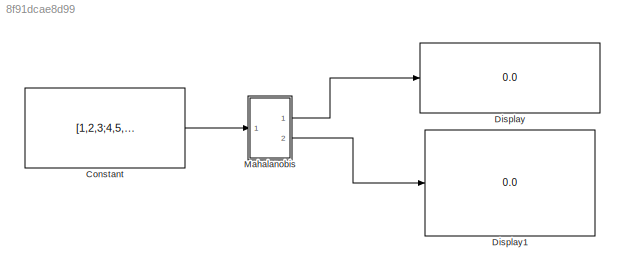
MODEL slx_8f91dcae8d99
KIND model
CONFIG AbsTol = auto
CONFIG EnableMultiTasking = off
CONFIG FixedStep = auto
CONFIG MaxStep = auto
CONFIG MinStep = auto
CONFIG RelTol = 1e-3
CONFIG SampleTimeConstraint = Unconstrained
CONFIG Solver = VariableStepAuto
CONFIG SolverName = VariableStepAuto
CONFIG StartTime = 0.0
CONFIG StopTime = 10.0
BLOCK [Constant] Constant
  Value = [1,2,3;4,5,6;7,8,9;1,2,3]
  VectorParams1D = off
BLOCK [Display] Display
  Decimation = 1
  Ports = [1]
BLOCK [Display] Display1
  Decimation = 1
  Ports = [1]
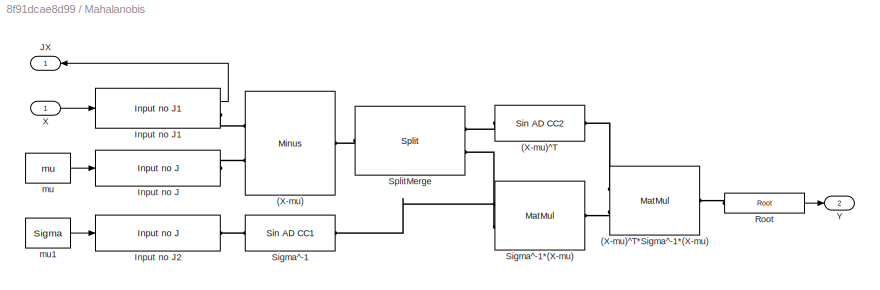
BLOCK [SubSystem] Mahalanobis
  Ports = [1, 2]
  RequestExecContextInheritance = off
  Variant = off
BLOCK [Reference] Mahalanobis/(X-mu)   REF=ad_blocks/Minus  (lib defined in slx_3af8d3de87d3)

  Ports = [0, 0, 0, 0, 0, 2, 1]
  SourceBlock = ad_blocks/Minus
BLOCK [Reference] Mahalanobis/(X-mu)^T  REF=ad_blocks/Sin AD CC2  (lib defined in slx_3af8d3de87d3)
  Ports = [0, 0, 0, 0, 0, 1, 1]
  SourceBlock = ad_blocks/Sin AD CC2
BLOCK [Reference] Mahalanobis/(X-mu)^T*Sigma^-1*(X-mu)  REF=ad_blocks/MatMul  (lib defined in slx_3af8d3de87d3)
  Ports = [0, 0, 0, 0, 0, 2, 1]
  SourceBlock = ad_blocks/MatMul
BLOCK [Reference] Mahalanobis/Input no J  REF=ad_blocks/Input no J  (lib defined in slx_3af8d3de87d3)
  Ports = [1, 0, 0, 0, 0, 0, 1]
  SourceBlock = ad_blocks/Input no J
BLOCK [Reference] Mahalanobis/Input no J1  REF=ad_blocks/Input no J1  (lib defined in slx_3af8d3de87d3)
  Ports = [1, 1, 0, 0, 0, 0, 1]
  SourceBlock = ad_blocks/Input no J1
BLOCK [Reference] Mahalanobis/Input no J2  REF=ad_blocks/Input no J  (lib defined in slx_3af8d3de87d3)
  Ports = [1, 0, 0, 0, 0, 0, 1]
  SourceBlock = ad_blocks/Input no J
BLOCK [Outport] Mahalanobis/JX
  IconDisplay = Port number
BLOCK [Reference] Mahalanobis/Root  REF=ad_blocks/Root  (lib defined in slx_3af8d3de87d3)
  Ports = [0, 1, 0, 0, 0, 1]
  SourceBlock = ad_blocks/Root
BLOCK [Reference] Mahalanobis/Sigma^-1  REF=ad_blocks/Sin AD CC1  (lib defined in slx_3af8d3de87d3)
  Ports = [0, 0, 0, 0, 0, 1, 1]
  SourceBlock = ad_blocks/Sin AD CC1
BLOCK [Reference] Mahalanobis/Sigma^-1*(X-mu)  REF=ad_blocks/MatMul  (lib defined in slx_3af8d3de87d3)
  Ports = [0, 0, 0, 0, 0, 2, 1]
  SourceBlock = ad_blocks/MatMul
BLOCK [Reference] Mahalanobis/SplitMerge  REF=ad_blocks/Split  (lib defined in slx_3af8d3de87d3)
  Ports = [0, 0, 0, 0, 0, 1, 2]
  SourceBlock = ad_blocks/Split
BLOCK [Inport] Mahalanobis/X
  IconDisplay = Port number
BLOCK [Outport] Mahalanobis/Y
  IconDisplay = Port number
  Port = 2
BLOCK [Constant] Mahalanobis/mu
  Value = mu
  VectorParams1D = off
BLOCK [Constant] Mahalanobis/mu1
  Value = Sigma
  VectorParams1D = off
LINE Constant:1 -> Mahalanobis:1
LINE Mahalanobis/Input no J1:1 -> Mahalanobis/JX:1
LINE Mahalanobis/Root:1 -> Mahalanobis/Y:1
LINE Mahalanobis/X:1 -> Mahalanobis/Input no J1:1
LINE Mahalanobis/mu1:1 -> Mahalanobis/Input no J2:1
LINE Mahalanobis/mu:1 -> Mahalanobis/Input no J:1
LINE Mahalanobis:1 -> Display:1
LINE Mahalanobis:2 -> Display1:1
PLINE Mahalanobis/(X-mu) :LConn1 -- Mahalanobis/Input no J1:RConn1
PLINE Mahalanobis/(X-mu) :LConn2 -- Mahalanobis/Input no J:RConn1
PLINE Mahalanobis/(X-mu) :RConn1 -- Mahalanobis/SplitMerge:LConn1
PLINE Mahalanobis/(X-mu)^T*Sigma^-1*(X-mu):LConn1 -- Mahalanobis/(X-mu)^T:RConn1
PLINE Mahalanobis/(X-mu)^T*Sigma^-1*(X-mu):LConn2 -- Mahalanobis/Sigma^-1*(X-mu):RConn1
PLINE Mahalanobis/(X-mu)^T*Sigma^-1*(X-mu):RConn1 -- Mahalanobis/Root:LConn1
PLINE Mahalanobis/(X-mu)^T:LConn1 -- Mahalanobis/SplitMerge:RConn1
PLINE Mahalanobis/Input no J2:RConn1 -- Mahalanobis/Sigma^-1:LConn1
PLINE Mahalanobis/Sigma^-1*(X-mu):LConn1 -- Mahalanobis/Sigma^-1:RConn1
PLINE Mahalanobis/Sigma^-1*(X-mu):LConn2 -- Mahalanobis/SplitMerge:RConn2
